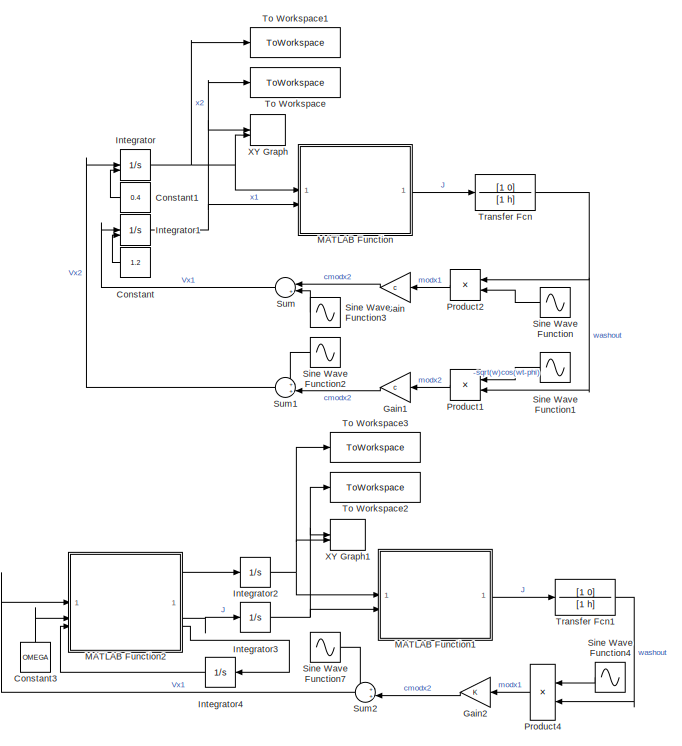
[diagram: root canvas - part 1/3, left side, full height]
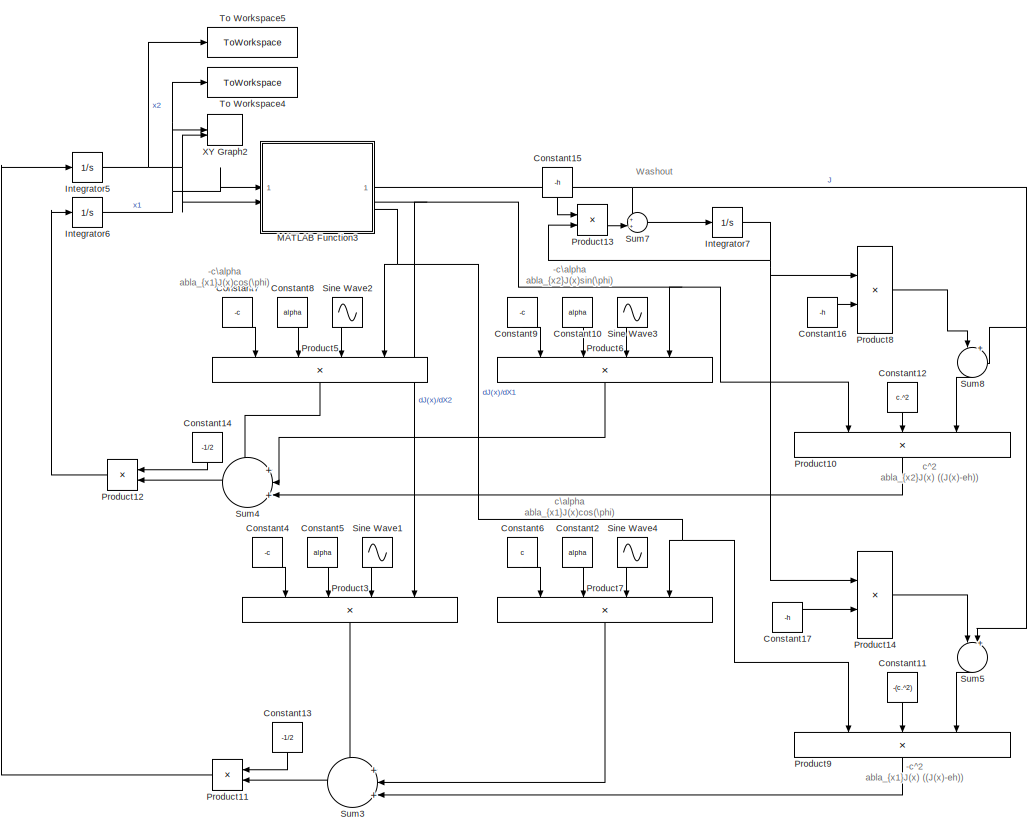
[diagram: root canvas - part 2/3, center side, full height]
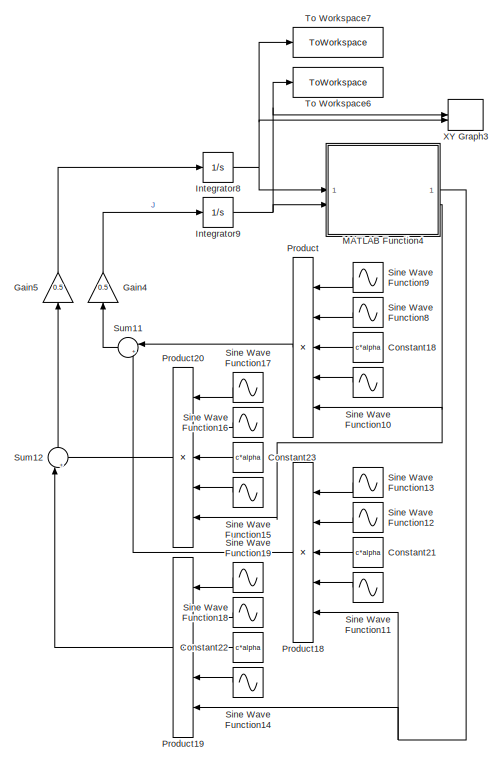
[diagram: root canvas - part 3/3, right side, full height]
MODEL slx_ac82d450cd97
KIND model
CONFIG AbsTol = auto
CONFIG EnableMultiTasking = off
CONFIG FixedStep = 0.01
CONFIG MaxStep = auto
CONFIG MinStep = auto
CONFIG RelTol = 1e-3
CONFIG SampleTimeConstraint = Unconstrained
CONFIG SolverName = ode5
CONFIG StartTime = 0.0
CONFIG StopTime = 200
WORKSPACE source: mxarray member
WORKSPACE OMEGA = 1
WORKSPACE alpha = 0.25
WORKSPACE c = 1
WORKSPACE h = 1
WORKSPACE omega = 50
WORKSPACE phi = 0
BLOCK [Constant] Constant
  Value = 1.2
BLOCK [Constant] Constant1
  Value = 0.4
BLOCK [Constant] Constant10
  NameLocation = right
  Value = alpha
BLOCK [Constant] Constant11
  NameLocation = left
  Value = -(c.^2)
BLOCK [Constant] Constant12
  NameLocation = left
  Value = c.^2
BLOCK [Constant] Constant13
  NameLocation = right
  Value = -1/2
BLOCK [Constant] Constant14
  NameLocation = right
  Value = -1/2
BLOCK [Constant] Constant15
  NameLocation = left
  Value = -h
BLOCK [Constant] Constant16
  Value = -h
BLOCK [Constant] Constant17
  Value = -h
BLOCK [Constant] Constant18
  Value = c*alpha
BLOCK [Constant] Constant2
  NameLocation = right
  Value = alpha
BLOCK [Constant] Constant21
  Value = c*alpha
BLOCK [Constant] Constant22
  Value = c*alpha
BLOCK [Constant] Constant23
  Value = c*alpha
BLOCK [Constant] Constant3
  NameLocation = right
  Value = OMEGA
BLOCK [Constant] Constant4
  NameLocation = right
  Value = -c
BLOCK [Constant] Constant5
  NameLocation = right
  Value = alpha
BLOCK [Constant] Constant6
  NameLocation = right
  Value = c
BLOCK [Constant] Constant7
  NameLocation = right
  Value = -c
BLOCK [Constant] Constant8
  NameLocation = right
  Value = alpha
BLOCK [Constant] Constant9
  NameLocation = right
  Value = -c
BLOCK [Gain] Gain
  Gain = c
BLOCK [Gain] Gain1
  Gain = c
BLOCK [Gain] Gain2
BLOCK [Gain] Gain4
  Gain = 0.5
  NameLocation = left
BLOCK [Gain] Gain5
  Gain = 0.5
  NameLocation = left
BLOCK [Integrator] Integrator
  InitialCondition = 1.2
  InitialConditionSource = external
BLOCK [Integrator] Integrator1
  InitialCondition = 0.4
  InitialConditionSource = external
BLOCK [Integrator] Integrator2
  InitialCondition = 0.4
BLOCK [Integrator] Integrator3
  InitialCondition = 1.2
BLOCK [Integrator] Integrator4
BLOCK [Integrator] Integrator5
  InitialCondition = 0.4
BLOCK [Integrator] Integrator6
  InitialCondition = 1.2
BLOCK [Integrator] Integrator7
BLOCK [Integrator] Integrator8
  InitialCondition = 0.4
BLOCK [Integrator] Integrator9
  InitialCondition = 1.2
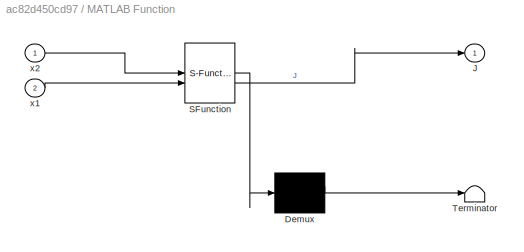
BLOCK [SubSystem] MATLAB Function
  ErrorFcn = Stateflow.Translate.translate
  PermitHierarchicalResolution = ExplicitOnly
  SFBlockType = MATLAB Function
  TreatAsAtomicUnit = on
BLOCK [Demux] MATLAB Function/ Demux 
  Outputs = 1
BLOCK [S-Function] MATLAB Function/ SFunction 
  EnableBusSupport = on
  FunctionName = sf_sfun
  PortCounts = [2 2]
  SFcnIsStateOwnerBlock = off
  SFunctionDeploymentMode = off
  Tag = Stateflow S-Function 2
BLOCK [Terminator] MATLAB Function/ Terminator 
BLOCK [Outport] MATLAB Function/J
BLOCK [Inport] MATLAB Function/x1
  Port = 2
BLOCK [Inport] MATLAB Function/x2
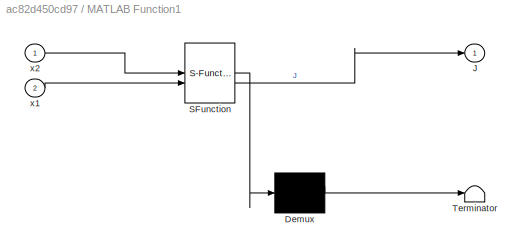
BLOCK [SubSystem] MATLAB Function1
  ErrorFcn = Stateflow.Translate.translate
  PermitHierarchicalResolution = ExplicitOnly
  SFBlockType = MATLAB Function
  TreatAsAtomicUnit = on
BLOCK [Demux] MATLAB Function1/ Demux 
  Outputs = 1
BLOCK [S-Function] MATLAB Function1/ SFunction 
  EnableBusSupport = on
  FunctionName = sf_sfun
  PortCounts = [2 2]
  SFcnIsStateOwnerBlock = off
  SFunctionDeploymentMode = off
  Tag = Stateflow S-Function 1
BLOCK [Terminator] MATLAB Function1/ Terminator 
BLOCK [Outport] MATLAB Function1/J
BLOCK [Inport] MATLAB Function1/x1
  Port = 2
BLOCK [Inport] MATLAB Function1/x2
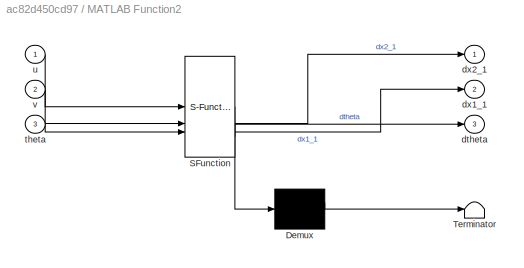
BLOCK [SubSystem] MATLAB Function2
  ErrorFcn = Stateflow.Translate.translate
  PermitHierarchicalResolution = ExplicitOnly
  SFBlockType = MATLAB Function
  TreatAsAtomicUnit = on
BLOCK [Demux] MATLAB Function2/ Demux 
  Outputs = 1
BLOCK [S-Function] MATLAB Function2/ SFunction 
  EnableBusSupport = on
  FunctionName = sf_sfun
  PortCounts = [3 4]
  SFcnIsStateOwnerBlock = off
  SFunctionDeploymentMode = off
  Tag = Stateflow S-Function 3
BLOCK [Terminator] MATLAB Function2/ Terminator 
BLOCK [Outport] MATLAB Function2/dtheta
  Port = 3
BLOCK [Outport] MATLAB Function2/dx1_1
  Port = 2
BLOCK [Outport] MATLAB Function2/dx2_1
BLOCK [Inport] MATLAB Function2/theta
  Port = 3
BLOCK [Inport] MATLAB Function2/u
BLOCK [Inport] MATLAB Function2/v
  Port = 2
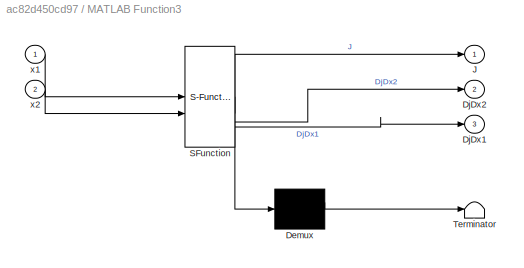
BLOCK [SubSystem] MATLAB Function3
  ErrorFcn = Stateflow.Translate.translate
  PermitHierarchicalResolution = ExplicitOnly
  SFBlockType = MATLAB Function
  TreatAsAtomicUnit = on
BLOCK [Demux] MATLAB Function3/ Demux 
  Outputs = 1
BLOCK [S-Function] MATLAB Function3/ SFunction 
  EnableBusSupport = on
  FunctionName = sf_sfun
  PortCounts = [2 4]
  SFcnIsStateOwnerBlock = off
  SFunctionDeploymentMode = off
  Tag = Stateflow S-Function 4
BLOCK [Terminator] MATLAB Function3/ Terminator 
BLOCK [Outport] MATLAB Function3/DjDx1
  Port = 3
BLOCK [Outport] MATLAB Function3/DjDx2
  Port = 2
BLOCK [Outport] MATLAB Function3/J
BLOCK [Inport] MATLAB Function3/x1
BLOCK [Inport] MATLAB Function3/x2
  Port = 2
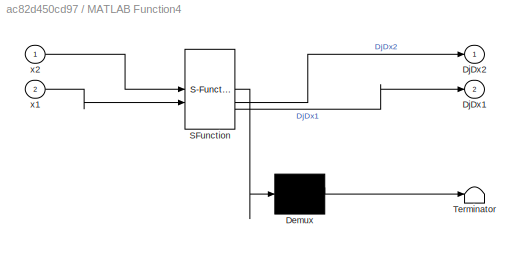
BLOCK [SubSystem] MATLAB Function4
  ErrorFcn = Stateflow.Translate.translate
  PermitHierarchicalResolution = ExplicitOnly
  SFBlockType = MATLAB Function
  TreatAsAtomicUnit = on
BLOCK [Demux] MATLAB Function4/ Demux 
  Outputs = 1
BLOCK [S-Function] MATLAB Function4/ SFunction 
  EnableBusSupport = on
  FunctionName = sf_sfun
  PortCounts = [2 3]
  SFcnIsStateOwnerBlock = off
  SFunctionDeploymentMode = off
  Tag = Stateflow S-Function 5
BLOCK [Terminator] MATLAB Function4/ Terminator 
BLOCK [Outport] MATLAB Function4/DjDx1
  Port = 2
BLOCK [Outport] MATLAB Function4/DjDx2
BLOCK [Inport] MATLAB Function4/x1
  Port = 2
BLOCK [Inport] MATLAB Function4/x2
BLOCK [Product] Product
  Inputs = 5
BLOCK [Product] Product1
BLOCK [Product] Product10
  Inputs = 3
  NameLocation = right
BLOCK [Product] Product11
BLOCK [Product] Product12
BLOCK [Product] Product13
BLOCK [Product] Product14
  NameLocation = top
BLOCK [Product] Product18
  Inputs = 5
BLOCK [Product] Product19
  Inputs = 5
BLOCK [Product] Product2
BLOCK [Product] Product20
  Inputs = 5
BLOCK [Product] Product3
  Inputs = 4
  NameLocation = right
BLOCK [Product] Product4
BLOCK [Product] Product5
  Inputs = 4
  NameLocation = right
BLOCK [Product] Product6
  Inputs = 4
  NameLocation = right
BLOCK [Product] Product7
  Inputs = 4
  NameLocation = right
BLOCK [Product] Product8
  NameLocation = top
BLOCK [Product] Product9
  Inputs = 3
  NameLocation = right
BLOCK [Sin] Sine Wave Function
  Amplitude = sqrt(omega)
  Frequency = omega
  Phase = -phi
  SampleTime = 0
  VectorParams1D = off
BLOCK [Sin] Sine Wave Function1
  Amplitude = sqrt(omega)
  Frequency = omega
  Phase = -pi/2 +phi
  SampleTime = 0
  VectorParams1D = off
BLOCK [Sin] Sine Wave Function10
  Frequency = phi
  Phase = pi/2
  SampleTime = 0
BLOCK [Sin] Sine Wave Function11
  Frequency = phi
  Phase = pi/2
  SampleTime = 0
BLOCK [Sin] Sine Wave Function12
  Frequency = OMEGA
  SampleTime = 0
BLOCK [Sin] Sine Wave Function13
  Frequency = OMEGA
  Phase = pi/2
  SampleTime = 0
BLOCK [Sin] Sine Wave Function14
  Frequency = phi
  Phase = pi/2
  SampleTime = 0
BLOCK [Sin] Sine Wave Function15
  Frequency = phi
  Phase = pi/2
  SampleTime = 0
BLOCK [Sin] Sine Wave Function16
  Frequency = OMEGA
  SampleTime = 0
BLOCK [Sin] Sine Wave Function17
  Frequency = OMEGA
  Phase = pi/2
  SampleTime = 0
BLOCK [Sin] Sine Wave Function18
  Frequency = OMEGA
  SampleTime = 0
BLOCK [Sin] Sine Wave Function19
  Frequency = OMEGA
  SampleTime = 0
BLOCK [Sin] Sine Wave Function2
  Amplitude = alpha * sqrt(omega)
  Frequency = omega
  SampleTime = 0
BLOCK [Sin] Sine Wave Function3
  Amplitude = alpha * sqrt(omega)
  Frequency = omega
  Phase = pi/2
  SampleTime = 0
BLOCK [Sin] Sine Wave Function4
  Amplitude = sqrt(omega)
  Frequency = omega
  Phase = -phi
  SampleTime = 0
  VectorParams1D = off
BLOCK [Sin] Sine Wave Function7
  Amplitude = alpha * sqrt(omega)
  Frequency = omega
  Phase = pi/2
  SampleTime = 0
BLOCK [Sin] Sine Wave Function8
  Frequency = OMEGA
  Phase = pi/2
  SampleTime = 0
BLOCK [Sin] Sine Wave Function9
  Frequency = OMEGA
  Phase = pi/2
  SampleTime = 0
BLOCK [Sin] Sine Wave1
  Frequency = phi
  NameLocation = right
  Phase = pi/2
  SampleTime = 0
BLOCK [Sin] Sine Wave2
  Frequency = phi
  NameLocation = right
  Phase = pi/2
  SampleTime = 0
BLOCK [Sin] Sine Wave3
  Frequency = phi
  NameLocation = right
  SampleTime = 0
BLOCK [Sin] Sine Wave4
  Frequency = phi
  NameLocation = right
  SampleTime = 0
BLOCK [Sum] Sum
  Inputs = |++
BLOCK [Sum] Sum1
  Inputs = ++|
BLOCK [Sum] Sum11
  Inputs = |++
BLOCK [Sum] Sum12
  Inputs = |++
  NameLocation = left
BLOCK [Sum] Sum2
  Inputs = ++|
BLOCK [Sum] Sum3
  Inputs = +|++|||
BLOCK [Sum] Sum4
  Inputs = +|++|||
BLOCK [Sum] Sum5
  Inputs = ||++||
  NameLocation = left
BLOCK [Sum] Sum7
  Inputs = ++|
BLOCK [Sum] Sum8
  Inputs = ||++||
  NameLocation = left
BLOCK [ToWorkspace] To Workspace
  FixptAsFi = on
  MaxDataPoints = inf
  SampleTime = -1
  SaveFormat = Structure With Time
  VariableName = x1out
BLOCK [ToWorkspace] To Workspace1
  FixptAsFi = on
  MaxDataPoints = inf
  SampleTime = -1
  SaveFormat = Structure With Time
  VariableName = x2out
BLOCK [ToWorkspace] To Workspace2
  FixptAsFi = on
  MaxDataPoints = inf
  SampleTime = -1
  SaveFormat = Structure With Time
  VariableName = x1out1
BLOCK [ToWorkspace] To Workspace3
  FixptAsFi = on
  MaxDataPoints = inf
  SampleTime = -1
  SaveFormat = Structure With Time
  VariableName = x2out1
BLOCK [ToWorkspace] To Workspace4
  FixptAsFi = on
  MaxDataPoints = inf
  SampleTime = -1
  SaveFormat = Structure With Time
  VariableName = x1outLie
BLOCK [ToWorkspace] To Workspace5
  FixptAsFi = on
  MaxDataPoints = inf
  SampleTime = -1
  SaveFormat = Structure With Time
  VariableName = x2outLie
BLOCK [ToWorkspace] To Workspace6
  FixptAsFi = on
  MaxDataPoints = inf
  SampleTime = -1
  SaveFormat = Structure With Time
  VariableName = x1out1Lie
BLOCK [ToWorkspace] To Workspace7
  FixptAsFi = on
  MaxDataPoints = inf
  SampleTime = -1
  SaveFormat = Structure With Time
  VariableName = x2out1Lie
BLOCK [TransferFcn] Transfer Fcn
  Denominator = [1 h]
  Numerator = [1 0]
BLOCK [TransferFcn] Transfer Fcn1
  Denominator = [1 h]
  Numerator = [1 0]
BLOCK [Record] XY Graph
  CompatibilityTag = XY
  FileSettingsInternal = {"entries":[{"content":{"excelSettings":{"content":{},"type":"Streamout.ExcelSettings"}},"type":"Streamout.FileSettingStorage","uuid":""}],"packageUris":["http:\/\/schema.mathworks.com\/mf0\/streamout_blocks\/R2020a"],"version":"1.0"}  <repeated x4 — deduplicated; at blocks: XY Graph, XY Graph1, XY Graph2, XY Graph3>
  Layout = [1 1]
  SignalsInternal = {"entries":[{"content":{"signals":[{"content":{"blockPath":[],"dimensions":[1,1],"domain":"","lineColor":"#edb120","lineWidth":2,"port":1,"sid":[""],"signalID":1,"signalName":"x1"},"type":"RecordBlkView.Signal","uuid":""},{"content":{"blockPath":[],"dimensions":[1,1],"domain":"","lineColor":"#7e2f8e","lineWidth":2,"port":2,"sid":[""],"signalID":2,"signalName":"x2"},"type":"RecordBlkView.Signal","u...<+154ch>
  VariableName = AvgOut
  VisualizationBindings = {"xyplotplugin":{"info":[{"series":[],"subplotID":1}]}}
BLOCK [Record] XY Graph1
  CompatibilityTag = XY
  Layout = [1 1]
  SignalsInternal = {"entries":[{"content":{"signals":[{"content":{"blockPath":[],"dimensions":[1],"domain":"","lineColor":"#b746ff","plots":[ 1 ],"port":1,"sid":[""],"signalID":1,"signalName":"Integrator3"},"type":"RecordBlkView.Signal","uuid":""},{"content":{"blockPath":[],"dimensions":[1],"domain":"","lineColor":"#64d413","plots":[ 1 ],"port":2,"sid":[""],"signalID":2,"signalName":"Integrator2"},"type":"RecordBlkV...<+168ch>
  VariableName = AvgOut
  VisualizationBindings = {"xyplotplugin":{"info":[{"series":[{"bindingParametersList":[{"parameter":"X-Axis","signalID":1,"signalName":"Integrator3"},{"parameter":"Y-Axis","signalID":2,"signalName":"Integrator2"}],"seriesID":0}],"subplotID":1}]}}
BLOCK [Record] XY Graph2
  CompatibilityTag = XY
  Layout = [1 1]
  SignalsInternal = {"entries":[{"content":{"signals":[{"content":{"blockPath":[],"dimensions":[1],"domain":"","lineColor":"#b746ff","plots":[ 1 ],"port":1,"sid":[""],"signalID":1,"signalName":"x1"},"type":"RecordBlkView.Signal","uuid":""},{"content":{"blockPath":[],"dimensions":[1],"domain":"","lineColor":"#64d413","plots":[ 1 ],"port":2,"sid":[""],"signalID":2,"signalName":"x2"},"type":"RecordBlkView.Signal","uuid"...<+150ch>
  VariableName = AvgOut
  VisualizationBindings = {"xyplotplugin":{"info":[{"series":[{"bindingParametersList":[{"parameter":"X-Axis","signalID":1,"signalName":"x1"},{"parameter":"Y-Axis","signalID":2,"signalName":"x2"}],"seriesID":0}],"subplotID":1}]}}
BLOCK [Record] XY Graph3
  CompatibilityTag = XY
  Layout = [1 1]
  SignalsInternal = {"entries":[{"content":{"signals":[{"content":{"blockPath":[],"dimensions":[1],"domain":"","lineColor":"#b746ff","plots":[ 1 ],"port":1,"sid":[""],"signalID":1,"signalName":"Integrator9"},"type":"RecordBlkView.Signal","uuid":""},{"content":{"blockPath":[],"dimensions":[1],"domain":"","lineColor":"#64d413","plots":[ 1 ],"port":2,"sid":[""],"signalID":2,"signalName":"Integrator8"},"type":"RecordBlkV...<+168ch>
  VariableName = AvgOut
  VisualizationBindings = {"xyplotplugin":{"info":[{"series":[{"bindingParametersList":[{"parameter":"X-Axis","signalID":1,"signalName":"Integrator9"},{"parameter":"Y-Axis","signalID":2,"signalName":"Integrator8"}],"seriesID":0}],"subplotID":1}]}}
ANNOTATION (root): -c\alpha\nabla_{x1}J(x)cos(\phi)
ANNOTATION (root): -c\alpha\nabla_{x2}J(x)sin(\phi)
ANNOTATION (root): -c^2\nabla_{x1}J(x) ((J(x)-eh))
ANNOTATION (root): Washout
ANNOTATION (root): c\alpha\nabla_{x1}J(x)cos(\phi)
ANNOTATION (root): c^2\nabla_{x2}J(x) ((J(x)-eh))
LINE Constant10:1 -> Product6:2
LINE Constant11:1 -> Product9:2
LINE Constant12:1 -> Product10:2
LINE Constant13:1 -> Product11:1
LINE Constant14:1 -> Product12:1
LINE Constant15:1 -> Product13:1
LINE Constant16:1 -> Product8:2
LINE Constant17:1 -> Product14:2
LINE Constant18:1 -> Product:3
LINE Constant1:1 -> Integrator:2
LINE Constant21:1 -> Product18:3
LINE Constant22:1 -> Product19:3
LINE Constant23:1 -> Product20:3
LINE Constant2:1 -> Product7:2
LINE Constant3:1 -> MATLAB Function2:2
LINE Constant4:1 -> Product3:1
LINE Constant5:1 -> Product3:2
LINE Constant6:1 -> Product7:1
LINE Constant7:1 -> Product5:1
LINE Constant8:1 -> Product5:2
LINE Constant9:1 -> Product6:1
LINE Constant:1 -> Integrator1:2
LINE Gain1:1 -> Sum1:2
LINE Gain2:1 -> Sum2:2
LINE Gain4:1 -> Integrator9:1
LINE Gain5:1 -> Integrator8:1
LINE Gain:1 -> Sum:1
NET Integrator1:1 -> MATLAB Function:2, To Workspace:1, XY Graph:1
NET Integrator2:1 -> MATLAB Function1:1, To Workspace3:1, XY Graph1:2
NET Integrator3:1 -> MATLAB Function1:2, To Workspace2:1, XY Graph1:1
LINE Integrator4:1 -> MATLAB Function2:3
NET Integrator5:1 -> MATLAB Function3:2, To Workspace5:1, XY Graph2:2
NET Integrator6:1 -> MATLAB Function3:1, To Workspace4:1, XY Graph2:1
NET Integrator7:1 -> Product13:2, Product14:1, Product8:1
NET Integrator8:1 -> MATLAB Function4:1, To Workspace7:1, XY Graph3:2
NET Integrator9:1 -> MATLAB Function4:2, To Workspace6:1, XY Graph3:1
NET Integrator:1 -> MATLAB Function:1, To Workspace1:1, XY Graph:2
LINE MATLAB Function1:1 -> Transfer Fcn1:1
LINE MATLAB Function2:1 -> Integrator2:1
LINE MATLAB Function2:2 -> Integrator3:1
LINE MATLAB Function2:3 -> Integrator4:1
NET MATLAB Function3:1 -> Sum5:2, Sum7:1, Sum8:2
NET MATLAB Function3:2 -> Product10:1, Product3:4, Product6:4
NET MATLAB Function3:3 -> Product5:4, Product7:4, Product9:1
NET MATLAB Function4:1 -> Product18:5, Product19:5
NET MATLAB Function4:2 -> Product20:5, Product:5
LINE MATLAB Function:1 -> Transfer Fcn:1
LINE Product10:1 -> Sum4:3
LINE Product11:1 -> Integrator5:1
LINE Product12:1 -> Integrator6:1
LINE Product13:1 -> Sum7:2
LINE Product14:1 -> Sum5:1
LINE Product18:1 -> Sum11:2
LINE Product19:1 -> Sum12:1
LINE Product1:1 -> Gain1:1
LINE Product20:1 -> Sum12:2
LINE Product2:1 -> Gain:1
LINE Product3:1 -> Sum3:1
LINE Product4:1 -> Gain2:1
LINE Product5:1 -> Sum4:1
LINE Product6:1 -> Sum4:2
LINE Product7:1 -> Sum3:2
LINE Product8:1 -> Sum8:1
LINE Product9:1 -> Sum3:3
LINE Product:1 -> Sum11:1
LINE Sine Wave Function10:1 -> Product:4
LINE Sine Wave Function11:1 -> Product18:4
LINE Sine Wave Function12:1 -> Product18:2
LINE Sine Wave Function13:1 -> Product18:1
LINE Sine Wave Function14:1 -> Product19:4
LINE Sine Wave Function15:1 -> Product20:4
LINE Sine Wave Function16:1 -> Product20:2
LINE Sine Wave Function17:1 -> Product20:1
LINE Sine Wave Function18:1 -> Product19:2
LINE Sine Wave Function19:1 -> Product19:1
LINE Sine Wave Function1:1 -> Product1:1
LINE Sine Wave Function2:1 -> Sum1:1
LINE Sine Wave Function3:1 -> Sum:2
LINE Sine Wave Function4:1 -> Product4:1
LINE Sine Wave Function7:1 -> Sum2:1
LINE Sine Wave Function8:1 -> Product:2
LINE Sine Wave Function9:1 -> Product:1
LINE Sine Wave Function:1 -> Product2:2
LINE Sine Wave1:1 -> Product3:3
LINE Sine Wave2:1 -> Product5:3
LINE Sine Wave3:1 -> Product6:3
LINE Sine Wave4:1 -> Product7:3
LINE Sum11:1 -> Gain4:1
LINE Sum12:1 -> Gain5:1
LINE Sum1:1 -> Integrator:1
LINE Sum2:1 -> MATLAB Function2:1
LINE Sum3:1 -> Product11:2
LINE Sum4:1 -> Product12:2
LINE Sum5:1 -> Product9:3
LINE Sum7:1 -> Integrator7:1
LINE Sum8:1 -> Product10:3
LINE Sum:1 -> Integrator1:1
LINE Transfer Fcn1:1 -> Product4:2
NET Transfer Fcn:1 -> Product1:2, Product2:1
note: NET lines group one-source signal fan-out (src -> all destinations, sorted); 1:1 wires keep LINE
CHART MATLAB Function1 states=1 transitions=1
  STATE_LABEL 'eML_blk_kernel()'
  STATE_LABEL 'SCRIPT:\nfunction J = costfn(x2, x1)\n\nJ = exp( -1*(x1.^2)) * exp(- 5*(x2.^2)) - 1;\n'
CHART MATLAB Function states=1 transitions=1
  STATE_LABEL 'eML_blk_kernel()'
  STATE_LABEL 'SCRIPT:\nfunction J = costfn(x2, x1)\n\nJ = exp( -1*(x1.^2)) * exp(- 5*(x2.^2)) - 1;\n'
CHART MATLAB Function2 states=1 transitions=1
  STATE_LABEL 'eML_blk_kernel()'
  STATE_LABEL 'SCRIPT:\nfunction [dx2_1, dx1_1, dtheta] = unicycle_model(u, v, theta)\n    dx1_1 = u * cos(theta);  % x1 dot\n    dx2_1 = u * sin(theta);  % x2 dot\n    dtheta = v;\nend\n'
CHART MATLAB Function3 states=1 transitions=1
  STATE_LABEL 'eML_blk_kernel()'
  STATE_LABEL 'SCRIPT:\nfunction [J, DjDx2, DjDx1] = costfn(x1, x2)\n    J = exp(-x1.^2) .* exp(-5*x2.^2) - 1;\n    DjDx1 = -2 * x1 .* exp(-x1.^2) .* exp(-5*x2.^2);\n    DjDx2 = -10 * x2 .* exp(-x1.^2) .* exp(-5*x2.^2);\nend\n'
CHART MATLAB Function4 states=1 transitions=1
  STATE_LABEL 'eML_blk_kernel()'
  STATE_LABEL 'SCRIPT:\nfunction [DjDx2, DjDx1] = costfn(x2, x1)\n    DjDx1 = -2 * x1 .* exp(-x1.^2) .* exp(-5*x2.^2);\n    DjDx2 = -10 * x2 .* exp(-x1.^2) .* exp(-5*x2.^2);\nend\n'
CHART  states=0 transitions=0
CHART  states=0 transitions=0
CHART  states=0 transitions=0
CHART  states=0 transitions=0
CHART  states=0 transitions=0
